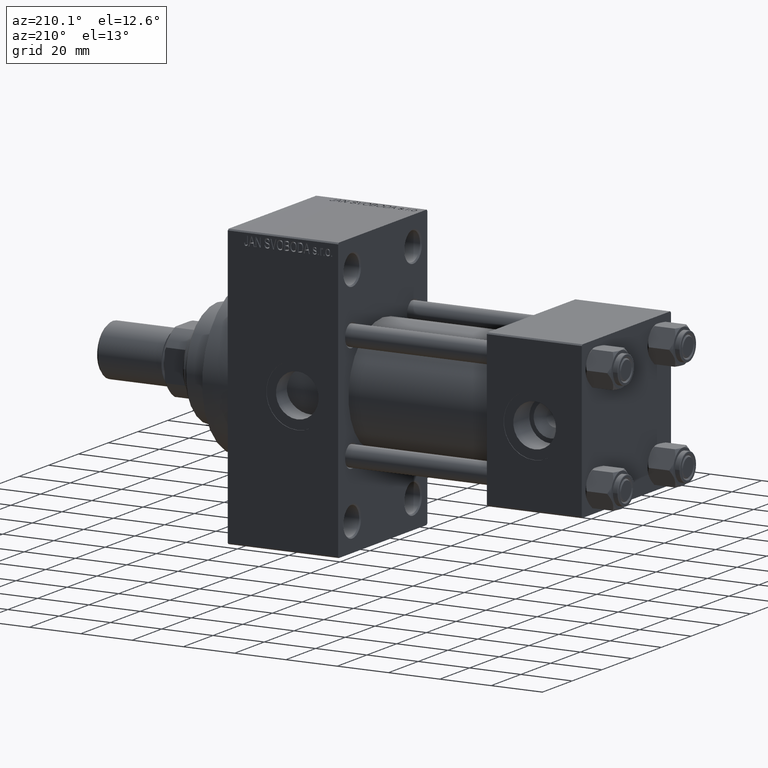
[diagram: clean part render]
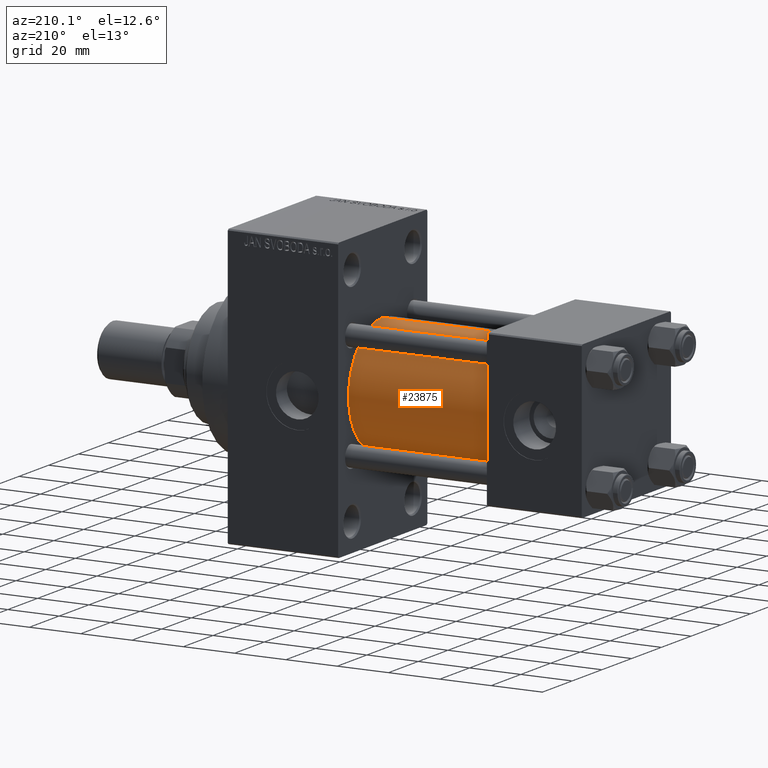
[diagram: same view with one face highlighted and labeled with its STEP entity id]
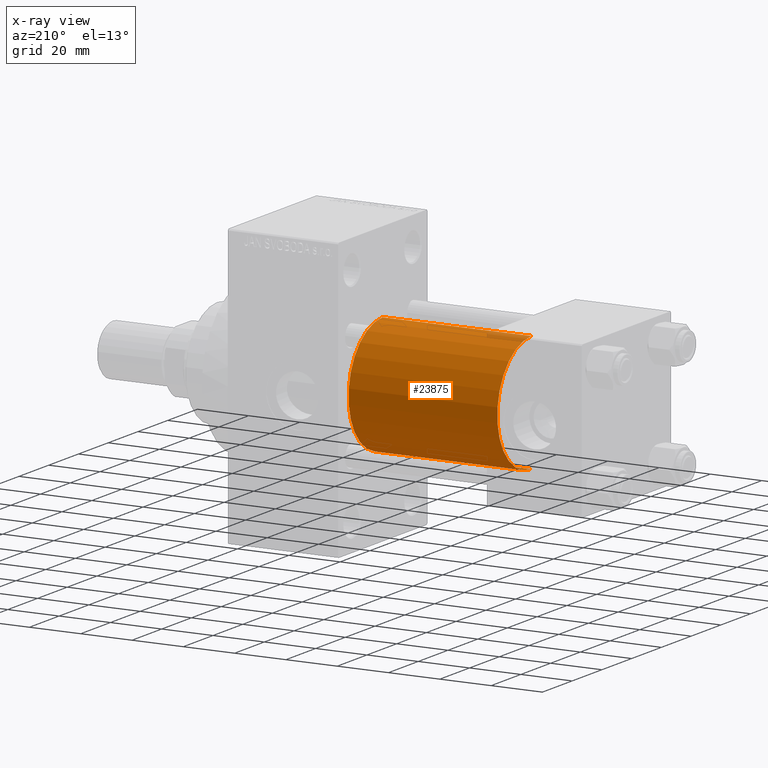
[diagram: x-ray of the same camera — body ghosted, the highlighted face saturated]
A machine part, auxiliary view. The second image highlights one B-rep face of the part: STEP entity #23875.
The next image is the same camera in x-ray: the body ghosted, the highlighted face saturated — about 2% of this face is hidden behind the body in this view.
In plain terms, the highlighted cylindrical surface (partial cylindrical patch) has radius 23 mm, axis along (-1, -0, -0).
Its self-contained STEP definition (entity closure, byte-faithful):
#471 = LINE ( 'NONE', #26282, #7438 ) ;
#1241 = CARTESIAN_POINT ( 'NONE',  ( 37.00000000000000000, -2.602085213965210642E-15, 0.000000000000000000 ) ) ;
#1809 = VERTEX_POINT ( 'NONE', #20173 ) ;
#3669 = AXIS2_PLACEMENT_3D ( 'NONE', #24957, #6153, #28354 ) ;
#4636 = DIRECTION ( 'NONE',  ( 0.000000000000000000, 0.000000000000000000, -1.000000000000000000 ) ) ;
#6153 = DIRECTION ( 'NONE',  ( -1.000000000000000000, -0.000000000000000000, -0.000000000000000000 ) ) ;
#7438 = VECTOR ( 'NONE', #30621, 1000.000000000000000 ) ;
#7511 = EDGE_CURVE ( 'NONE', #40630, #46319, #31046, .T. ) ;
#10808 = DIRECTION ( 'NONE',  ( -1.000000000000000000, -0.000000000000000000, -0.000000000000000000 ) ) ;
#11887 = DIRECTION ( 'NONE',  ( 1.000000000000000000, 0.000000000000000000, 0.000000000000000000 ) ) ;
#15080 = CARTESIAN_POINT ( 'NONE',  ( 37.00000000000000000, 2.146024240737012665E-16, -23.00000000000000000 ) ) ;
#15372 = LINE ( 'NONE', #41196, #43051 ) ;
#15955 = DIRECTION ( 'NONE',  ( 0.000000000000000000, 0.000000000000000000, 1.000000000000000000 ) ) ;
#16527 = ORIENTED_EDGE ( 'NONE', *, *, #16957, .F. ) ;
#16957 = EDGE_CURVE ( 'NONE', #45608, #46319, #471, .T. ) ;
#20173 = CARTESIAN_POINT ( 'NONE',  ( 95.00000000000000000, 2.146024240737012665E-16, -23.00000000000000000 ) ) ;
#23875 = ADVANCED_FACE ( 'NONE', ( #31489 ), #43522, .T. ) ;
#24957 = CARTESIAN_POINT ( 'NONE',  ( 95.00000000000000000, -2.602085213965210642E-15, 0.000000000000000000 ) ) ;
#25831 = EDGE_CURVE ( 'NONE', #1809, #40630, #15372, .T. ) ;
#26282 = CARTESIAN_POINT ( 'NONE',  ( 95.00000000000000000, -2.602085213965210642E-15, 23.00000000000000000 ) ) ;
#26363 = CARTESIAN_POINT ( 'NONE',  ( 95.00000000000000000, -2.602085213965210642E-15, 0.000000000000000000 ) ) ;
#28354 = DIRECTION ( 'NONE',  ( 0.000000000000000000, 0.000000000000000000, 1.000000000000000000 ) ) ;
#28820 = ORIENTED_EDGE ( 'NONE', *, *, #7511, .T. ) ;
#30287 = AXIS2_PLACEMENT_3D ( 'NONE', #26363, #11887, #4636 ) ;
#30621 = DIRECTION ( 'NONE',  ( -1.000000000000000000, -0.000000000000000000, -0.000000000000000000 ) ) ;
#31046 = CIRCLE ( 'NONE', #41027, 23.00000000000000000 ) ;
#31489 = FACE_OUTER_BOUND ( 'NONE', #42014, .T. ) ;
#35751 = CARTESIAN_POINT ( 'NONE',  ( 37.00000000000000000, -2.602085213965210642E-15, 23.00000000000000000 ) ) ;
#40630 = VERTEX_POINT ( 'NONE', #15080 ) ;
#41027 = AXIS2_PLACEMENT_3D ( 'NONE', #1241, #45871, #15955 ) ;
#41196 = CARTESIAN_POINT ( 'NONE',  ( 95.00000000000000000, 2.146024240737012665E-16, -23.00000000000000000 ) ) ;
#42014 = EDGE_LOOP ( 'NONE', ( #43347, #44906, #28820, #16527 ) ) ;
#43051 = VECTOR ( 'NONE', #10808, 1000.000000000000000 ) ;
#43347 = ORIENTED_EDGE ( 'NONE', *, *, #47310, .F. ) ;
#43522 = CYLINDRICAL_SURFACE ( 'NONE', #3669, 23.00000000000000000 ) ;
#44906 = ORIENTED_EDGE ( 'NONE', *, *, #25831, .T. ) ;
#45361 = CARTESIAN_POINT ( 'NONE',  ( 95.00000000000000000, -2.602085213965210642E-15, 23.00000000000000000 ) ) ;
#45608 = VERTEX_POINT ( 'NONE', #45361 ) ;
#45871 = DIRECTION ( 'NONE',  ( 1.000000000000000000, -0.000000000000000000, 0.000000000000000000 ) ) ;
#46319 = VERTEX_POINT ( 'NONE', #35751 ) ;
#46471 = CIRCLE ( 'NONE', #30287, 23.00000000000000000 ) ;
#47310 = EDGE_CURVE ( 'NONE', #1809, #45608, #46471, .T. ) ;